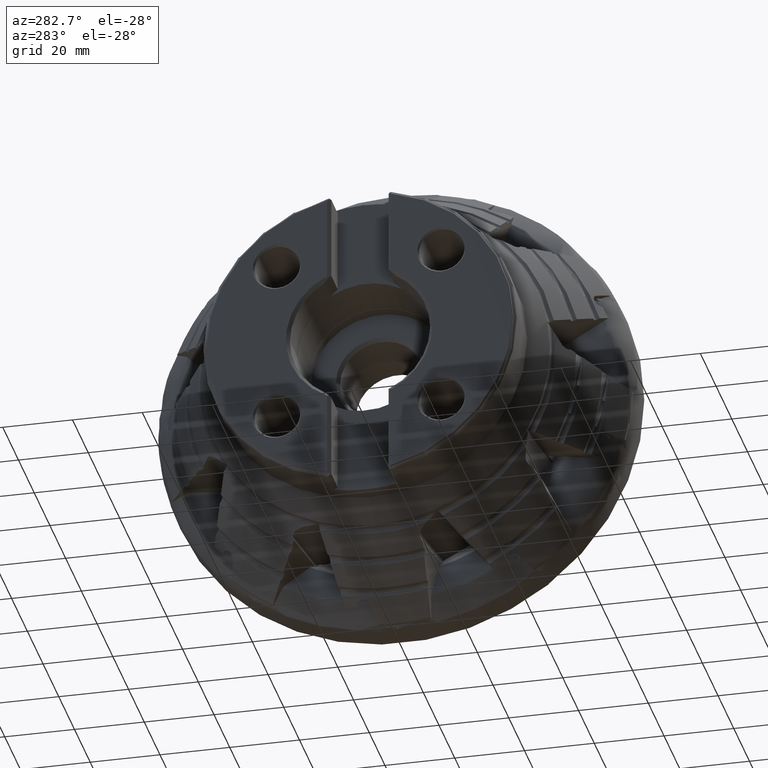
[diagram: clean part render]
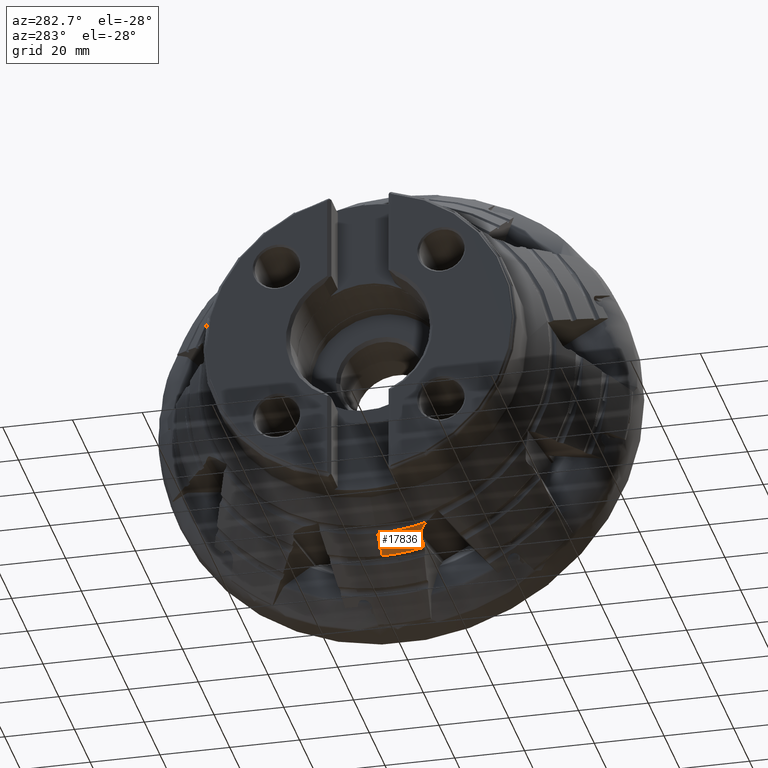
[diagram: same view with one face highlighted and labeled with its STEP entity id]
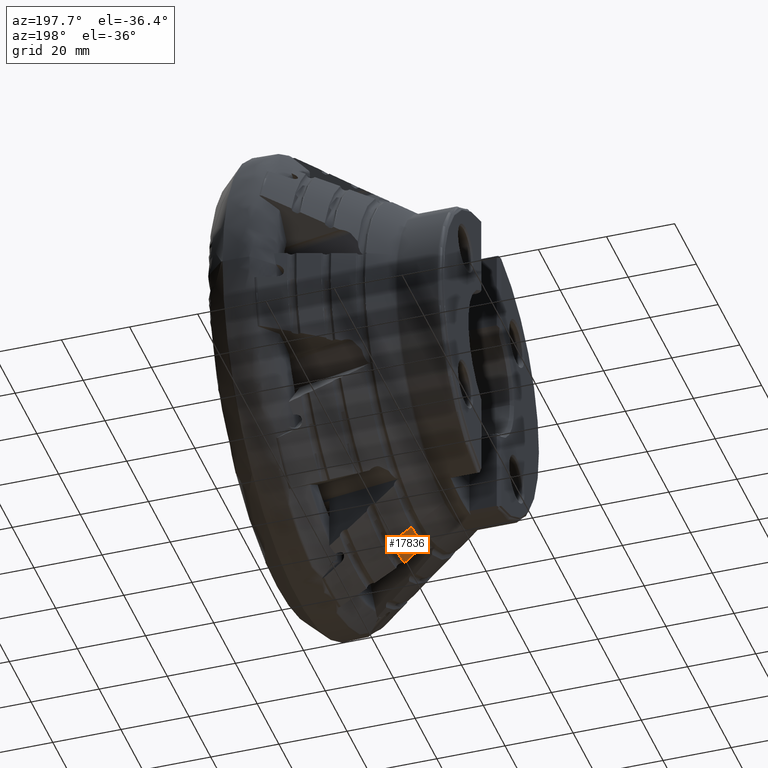
[diagram: same view with one face highlighted and labeled with its STEP entity id]
A machine part, auxiliary view. The second image highlights one B-rep face of the part: STEP entity #17836.
A second angle (auxiliary view) of the same face is appended — the face is thin or edge-on in the first view.
In plain terms, the highlighted conical surface has half-angle 33.847 deg.
Its self-contained STEP definition (entity closure, byte-faithful):
#322 = EDGE_CURVE ( 'NONE', #552, #5880, #19186, .T. ) ;
#552 = VERTEX_POINT ( 'NONE', #21350 ) ;
#745 = CARTESIAN_POINT ( 'NONE',  ( -35.20789371812048100, -11.44515461085914900, -52.24104642379447200 ) ) ;
#845 = EDGE_CURVE ( 'NONE', #15221, #16481, #17963, .T. ) ;
#1026 = DIRECTION ( 'NONE',  ( 0.8305253908002692100, 0.0000000000000000000, -0.5569807673843506500 ) ) ;
#1763 = ORIENTED_EDGE ( 'NONE', *, *, #2891, .F. ) ;
#2530 = CARTESIAN_POINT ( 'NONE',  ( -35.56744482441319400, -11.45719909519635500, -51.99152536115863700 ) ) ;
#2842 = EDGE_CURVE ( 'NONE', #5576, #19976, #16665, .T. ) ;
#2891 = EDGE_CURVE ( 'NONE', #16481, #5880, #20819, .T. ) ;
#3791 = CARTESIAN_POINT ( 'NONE',  ( -38.12388201183328100, 0.0000000000000000000, 0.0000000000000000000 ) ) ;
#4289 = CARTESIAN_POINT ( 'NONE',  ( -35.91801058815417500, -11.53314502098046300, -51.73389959522103300 ) ) ;
#4314 = CARTESIAN_POINT ( 'NONE',  ( -33.66444131984702900, -11.95705920669904600, -53.18771105204474000 ) ) ;
#4769 = CARTESIAN_POINT ( 'NONE',  ( -33.66444131984702900, -11.95705920669904600, -53.18771105204474000 ) ) ;
#5369 = CARTESIAN_POINT ( 'NONE',  ( -32.16035626415862200, 0.0000000000000000000, 0.0000000000000000000 ) ) ;
#5564 = DIRECTION ( 'NONE',  ( 0.0000000000000000000, 0.0000000000000000000, -1.000000000000000000 ) ) ;
#5576 = VERTEX_POINT ( 'NONE', #9859 ) ;
#5880 = VERTEX_POINT ( 'NONE', #16544 ) ;
#6004 = CARTESIAN_POINT ( 'NONE',  ( -33.89032110237244700, -11.81258906352546000, -53.06492521111162100 ) ) ;
#6085 = CARTESIAN_POINT ( 'NONE',  ( -36.24151932807735900, -11.68976845760338900, -51.47631037032535800 ) ) ;
#6200 = AXIS2_PLACEMENT_3D ( 'NONE', #22133, #20189, #22207 ) ;
#6202 = B_SPLINE_CURVE_WITH_KNOTS ( 'NONE', 3,
 ( #18462, #6004, #9594, #22077, #11385, #745, #13161, #2530, #14963, #4289, #16757, #6085, #18539, #22542 ),
 .UNSPECIFIED., .F., .F.,
 ( 4, 2, 2, 2, 2, 2, 4 ),
 ( 1.630700043456675700E-015, 0.0008722271378355709100, 0.001744454275669511000, 0.002180567844586472400, 0.002616681413503433800, 0.003052794982420395600, 0.003488908551337357000 ),
 .UNSPECIFIED. ) ;
#6909 = CARTESIAN_POINT ( 'NONE',  ( -38.12388201183328800, -13.87339199889998800, -49.62160597890870400 ) ) ;
#7005 = CARTESIAN_POINT ( 'NONE',  ( -37.00636999176705900, -12.51815319139989500, -50.75878636243914600 ) ) ;
#7154 = DIRECTION ( 'NONE',  ( 0.0000000000000000000, 0.0000000000000000000, -1.000000000000000000 ) ) ;
#7393 = EDGE_CURVE ( 'NONE', #15221, #5576, #6202, .T. ) ;
#8806 = CARTESIAN_POINT ( 'NONE',  ( -37.57543667929484600, -13.19081571276765500, -50.19435548885269300 ) ) ;
#9594 = CARTESIAN_POINT ( 'NONE',  ( -34.12278861039381900, -11.70106892799660200, -52.92987504816260700 ) ) ;
#9859 = CARTESIAN_POINT ( 'NONE',  ( -36.42176563410359300, -11.85638200830655200, -51.31407831809650600 ) ) ;
#10014 = ORIENTED_EDGE ( 'NONE', *, *, #7393, .T. ) ;
#11385 = CARTESIAN_POINT ( 'NONE',  ( -34.84525836289918000, -11.47772804391070700, -52.48287217569937700 ) ) ;
#12077 = AXIS2_PLACEMENT_3D ( 'NONE', #5369, #17831, #7154 ) ;
#12091 = EDGE_LOOP ( 'NONE', ( #19576, #14369, #1763, #18464, #10014, #17272 ) ) ;
#12772 = CIRCLE ( 'NONE', #15129, 51.52450664956638300 ) ;
#13119 = CONICAL_SURFACE ( 'NONE', #6200, 55.52386559036361300, 0.5907460211846046200 ) ;
#13161 = CARTESIAN_POINT ( 'NONE',  ( -35.32819938346830200, -11.44264735997299300, -52.15900419245608100 ) ) ;
#13185 = CARTESIAN_POINT ( 'NONE',  ( -33.16333357301061100, -11.90124170704884500, -53.54470795491860700 ) ) ;
#13659 = FACE_OUTER_BOUND ( 'NONE', #12091, .T. ) ;
#14369 = ORIENTED_EDGE ( 'NONE', *, *, #322, .T. ) ;
#14767 = CARTESIAN_POINT ( 'NONE',  ( -32.16035626415861500, -11.78994629779372100, -54.25768900710668400 ) ) ;
#14963 = CARTESIAN_POINT ( 'NONE',  ( -35.68725108820559900, -11.47448675566975700, -51.90544486848898500 ) ) ;
#14990 = CARTESIAN_POINT ( 'NONE',  ( -32.66196658663930900, -11.84553976714042800, -53.90136022595925200 ) ) ;
#15129 = AXIS2_PLACEMENT_3D ( 'NONE', #3791, #16233, #5564 ) ;
#15221 = VERTEX_POINT ( 'NONE', #4769 ) ;
#16233 = DIRECTION ( 'NONE',  ( 1.000000000000000000, -0.0000000000000000000, -0.0000000000000000000 ) ) ;
#16481 = VERTEX_POINT ( 'NONE', #14767 ) ;
#16544 = CARTESIAN_POINT ( 'NONE',  ( -32.16035626415862200, 0.0000000000000000000, -55.52386559036361300 ) ) ;
#16665 = B_SPLINE_CURVE_WITH_KNOTS ( 'NONE', 3,
 ( #17672, #7005, #8806, #21293 ),
 .UNSPECIFIED., .F., .F.,
 ( 4, 4 ),
 ( 0.02058453813049007000, 0.02370252889135443500 ),
 .UNSPECIFIED. ) ;
#16757 = CARTESIAN_POINT ( 'NONE',  ( -36.02954458331361600, -11.57420775818896400, -51.64811032333757600 ) ) ;
#16781 = CARTESIAN_POINT ( 'NONE',  ( -32.16035626415861500, -11.78994629779372100, -54.25768900710668400 ) ) ;
#16829 = EDGE_CURVE ( 'NONE', #19976, #552, #12772, .T. ) ;
#17272 = ORIENTED_EDGE ( 'NONE', *, *, #2842, .T. ) ;
#17672 = CARTESIAN_POINT ( 'NONE',  ( -36.42176563410359300, -11.85638200830655200, -51.31407831809650600 ) ) ;
#17831 = DIRECTION ( 'NONE',  ( 1.000000000000000000, -0.0000000000000000000, -0.0000000000000000000 ) ) ;
#17836 = ADVANCED_FACE ( 'NONE', ( #13659 ), #13119, .T. ) ;
#17963 = B_SPLINE_CURVE_WITH_KNOTS ( 'NONE', 3,
 ( #4314, #13185, #14990, #16781 ),
 .UNSPECIFIED., .F., .F.,
 ( 4, 4 ),
 ( 0.005507147960838635600, 0.007360532453753990500 ),
 .UNSPECIFIED. ) ;
#18462 = CARTESIAN_POINT ( 'NONE',  ( -33.66444131984702900, -11.95705920669904600, -53.18771105204474000 ) ) ;
#18464 = ORIENTED_EDGE ( 'NONE', *, *, #845, .F. ) ;
#18539 = CARTESIAN_POINT ( 'NONE',  ( -36.33848921311719200, -11.76211323504559300, -51.39317921097131100 ) ) ;
#19186 = LINE ( 'NONE', #22360, #19759 ) ;
#19576 = ORIENTED_EDGE ( 'NONE', *, *, #16829, .T. ) ;
#19759 = VECTOR ( 'NONE', #1026, 1000.000000000000000 ) ;
#19976 = VERTEX_POINT ( 'NONE', #6909 ) ;
#20189 = DIRECTION ( 'NONE',  ( 1.000000000000000000, -0.0000000000000000000, -0.0000000000000000000 ) ) ;
#20819 = CIRCLE ( 'NONE', #12077, 55.52386559036361300 ) ;
#21293 = CARTESIAN_POINT ( 'NONE',  ( -38.12388201183328800, -13.87339199889998800, -49.62160597890870400 ) ) ;
#21350 = CARTESIAN_POINT ( 'NONE',  ( -38.12388201183328100, 0.0000000000000000000, -51.52450664956638300 ) ) ;
#22077 = CARTESIAN_POINT ( 'NONE',  ( -34.59912141194442400, -11.53346355111912100, -52.63967139364032000 ) ) ;
#22133 = CARTESIAN_POINT ( 'NONE',  ( -32.16035626415862200, 0.0000000000000000000, 0.0000000000000000000 ) ) ;
#22207 = DIRECTION ( 'NONE',  ( 0.0000000000000000000, 0.0000000000000000000, -1.000000000000000000 ) ) ;
#22360 = CARTESIAN_POINT ( 'NONE',  ( -32.16035626415862200, 0.0000000000000000000, -55.52386559036361300 ) ) ;
#22542 = CARTESIAN_POINT ( 'NONE',  ( -36.42176563410359300, -11.85638200830655200, -51.31407831809650600 ) ) ;